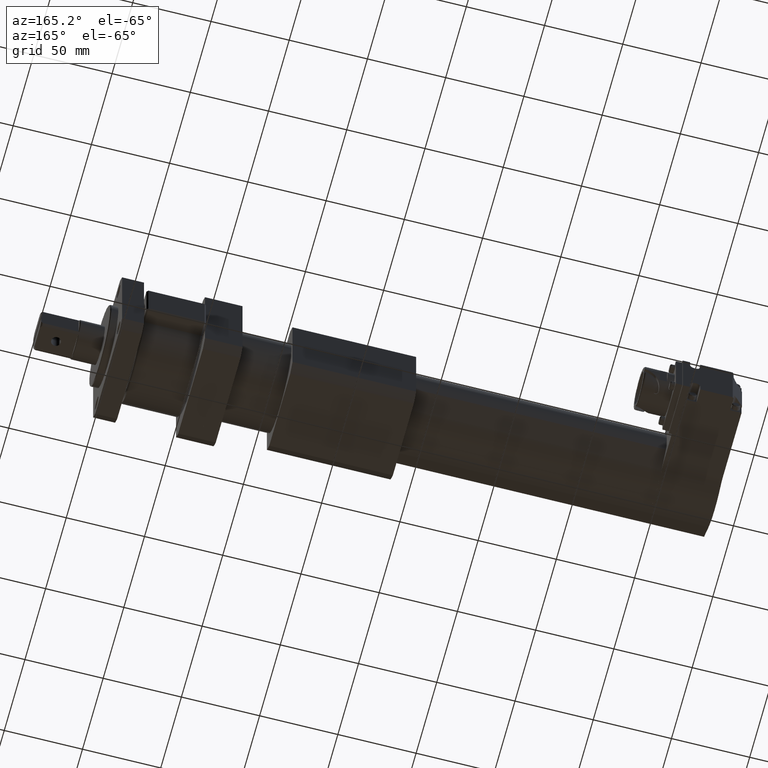
[diagram: clean part render]
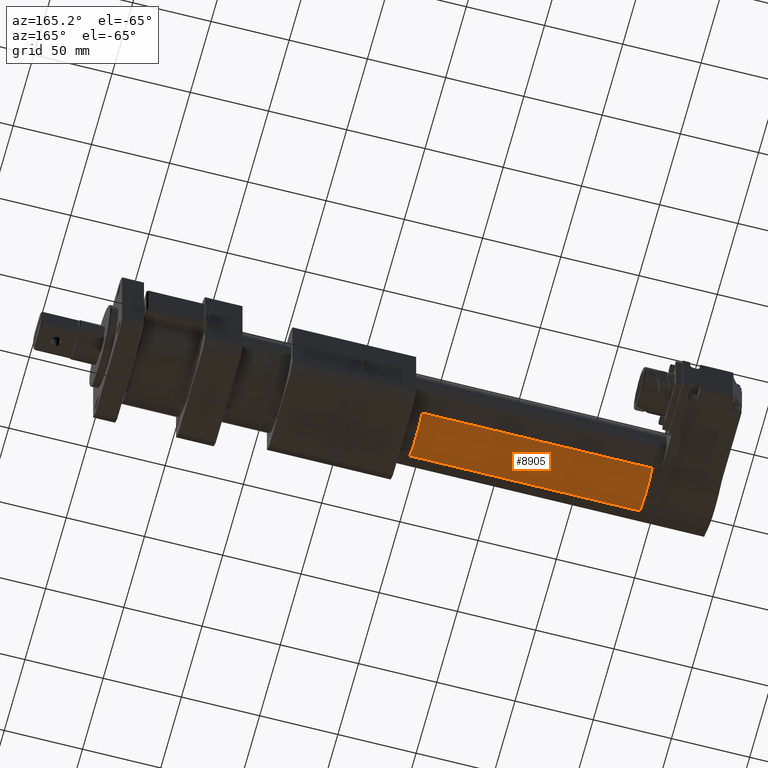
[diagram: same view with one face highlighted and labeled with its STEP entity id]
A machine part, auxiliary view. The second image highlights one B-rep face of the part: STEP entity #8905.
In plain terms, the highlighted cylindrical surface (partial cylindrical patch) has radius 24.5 mm, axis along (1, -0, -0).
Its self-contained STEP definition (entity closure, byte-faithful):
#146 = LINE ( 'NONE', #8937, #3592 ) ;
#262 = AXIS2_PLACEMENT_3D ( 'NONE', #1009, #5883, #1706 ) ;
#301 = DIRECTION ( 'NONE',  ( 1.000000000000000000, -0.0000000000000000000, -0.0000000000000000000 ) ) ;
#765 = CIRCLE ( 'NONE', #7223, 24.50000000000000700 ) ;
#833 = CARTESIAN_POINT ( 'NONE',  ( -344.0000000000000000, 15.08370614547852500, -19.30626346336478200 ) ) ;
#1009 = CARTESIAN_POINT ( 'NONE',  ( -344.0000000000000000, 0.0000000000000000000, 0.0000000000000000000 ) ) ;
#1596 = EDGE_CURVE ( 'NONE', #5747, #7857, #146, .T. ) ;
#1706 = DIRECTION ( 'NONE',  ( 0.0000000000000000000, 0.0000000000000000000, 1.000000000000000000 ) ) ;
#1886 = ORIENTED_EDGE ( 'NONE', *, *, #4605, .T. ) ;
#2471 = VERTEX_POINT ( 'NONE', #7296 ) ;
#3058 = VERTEX_POINT ( 'NONE', #7543 ) ;
#3414 = FACE_OUTER_BOUND ( 'NONE', #7144, .T. ) ;
#3439 = LINE ( 'NONE', #833, #8397 ) ;
#3592 = VECTOR ( 'NONE', #4556, 1000.000000000000000 ) ;
#3699 = DIRECTION ( 'NONE',  ( -1.000000000000000000, 0.0000000000000000000, 0.0000000000000000000 ) ) ;
#4162 = ORIENTED_EDGE ( 'NONE', *, *, #1596, .F. ) ;
#4421 = CARTESIAN_POINT ( 'NONE',  ( -344.0000000000000000, 0.0000000000000000000, 0.0000000000000000000 ) ) ;
#4556 = DIRECTION ( 'NONE',  ( 1.000000000000000000, -0.0000000000000000000, -0.0000000000000000000 ) ) ;
#4605 = EDGE_CURVE ( 'NONE', #3058, #2471, #3439, .T. ) ;
#4654 = CARTESIAN_POINT ( 'NONE',  ( -196.9999999999999700, -15.08370614547852600, -19.30626346336477900 ) ) ;
#4673 = CARTESIAN_POINT ( 'NONE',  ( -344.0000000000000000, -15.08370614547852600, -19.30626346336477900 ) ) ;
#5024 = DIRECTION ( 'NONE',  ( 1.000000000000000000, -0.0000000000000000000, -0.0000000000000000000 ) ) ;
#5160 = EDGE_CURVE ( 'NONE', #3058, #5747, #6428, .T. ) ;
#5463 = ORIENTED_EDGE ( 'NONE', *, *, #5160, .F. ) ;
#5747 = VERTEX_POINT ( 'NONE', #4673 ) ;
#5883 = DIRECTION ( 'NONE',  ( -1.000000000000000000, 0.0000000000000000000, 0.0000000000000000000 ) ) ;
#6428 = CIRCLE ( 'NONE', #262, 24.50000000000000700 ) ;
#6617 = EDGE_CURVE ( 'NONE', #2471, #7857, #765, .T. ) ;
#6946 = CYLINDRICAL_SURFACE ( 'NONE', #7385, 24.50000000000000700 ) ;
#7144 = EDGE_LOOP ( 'NONE', ( #8976, #4162, #5463, #1886 ) ) ;
#7223 = AXIS2_PLACEMENT_3D ( 'NONE', #7920, #3699, #8616 ) ;
#7247 = DIRECTION ( 'NONE',  ( 0.0000000000000000000, 0.0000000000000000000, -1.000000000000000000 ) ) ;
#7296 = CARTESIAN_POINT ( 'NONE',  ( -196.9999999999999700, 15.08370614547852500, -19.30626346336478200 ) ) ;
#7385 = AXIS2_PLACEMENT_3D ( 'NONE', #4421, #301, #7247 ) ;
#7543 = CARTESIAN_POINT ( 'NONE',  ( -344.0000000000000000, 15.08370614547852500, -19.30626346336478200 ) ) ;
#7857 = VERTEX_POINT ( 'NONE', #4654 ) ;
#7920 = CARTESIAN_POINT ( 'NONE',  ( -196.9999999999999700, 0.0000000000000000000, 0.0000000000000000000 ) ) ;
#8397 = VECTOR ( 'NONE', #5024, 1000.000000000000000 ) ;
#8616 = DIRECTION ( 'NONE',  ( 0.0000000000000000000, 0.0000000000000000000, 1.000000000000000000 ) ) ;
#8905 = ADVANCED_FACE ( 'NONE', ( #3414 ), #6946, .T. ) ;
#8937 = CARTESIAN_POINT ( 'NONE',  ( -344.0000000000000000, -15.08370614547852600, -19.30626346336477900 ) ) ;
#8976 = ORIENTED_EDGE ( 'NONE', *, *, #6617, .T. ) ;